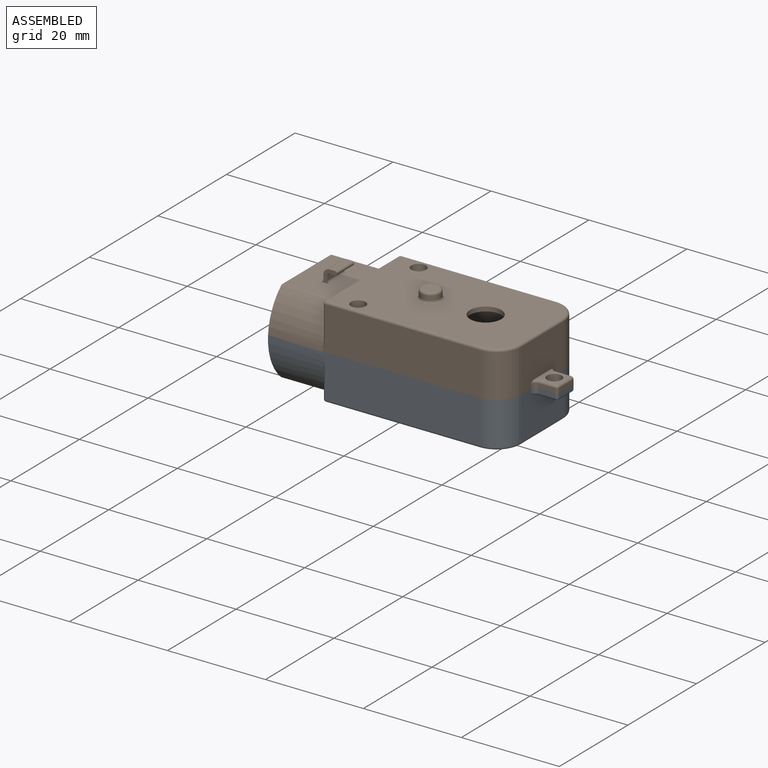
[diagram: assembled view]
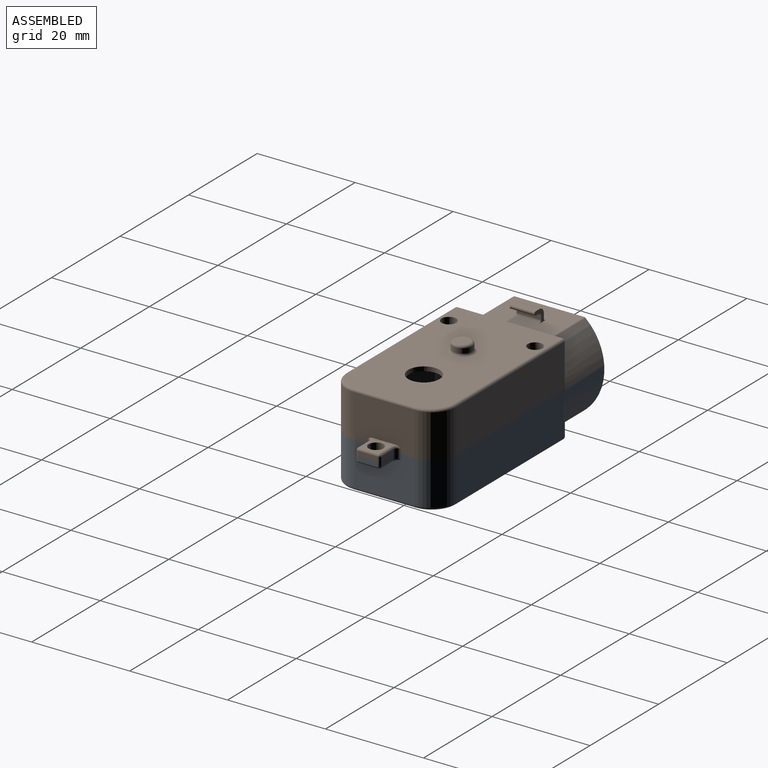
[diagram: assembled view, second angle]
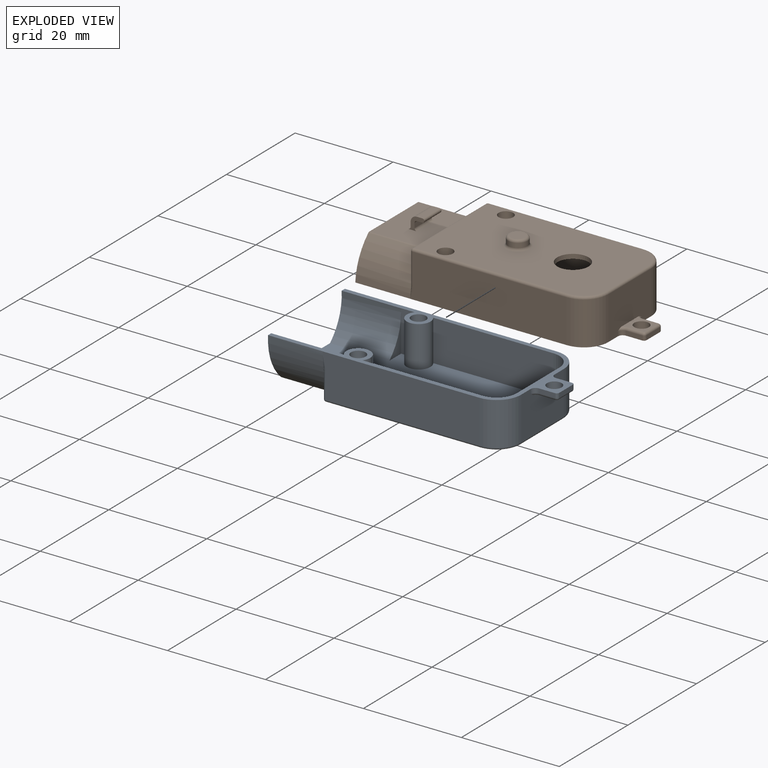
[diagram: exploded view]
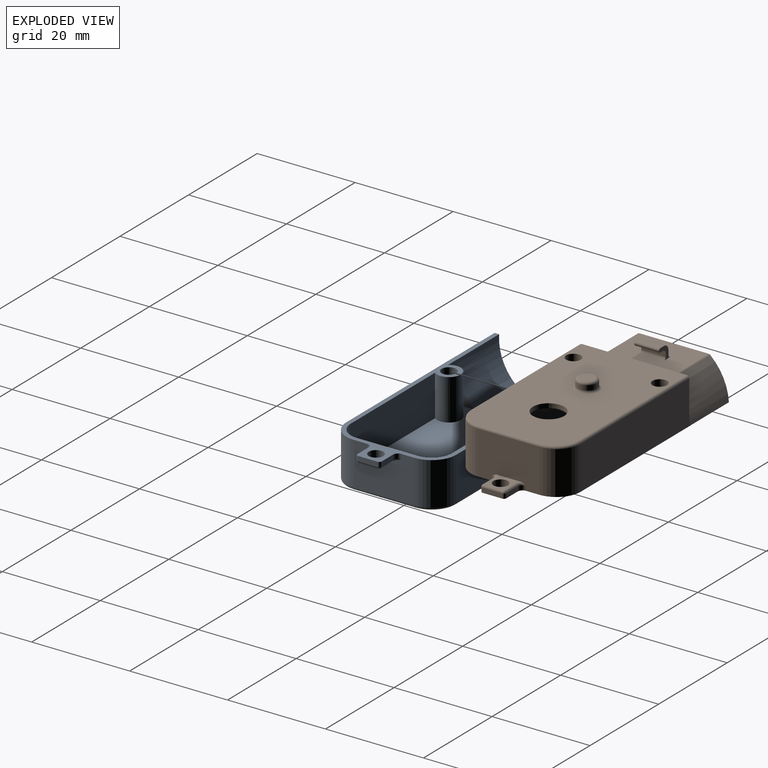
[diagram: exploded view, second angle]
ASSEMBLY  parts=2 mates=3
PART A: 74 faces, bbox 53.2x23.4x13.7 mm
  f0: plane 53.01x22.45mm, normal (0,0,1), area 139.2mm2, adj f39,f40,f41,f42,f43,f44,f45,f46
  f1: cylinder r=0.5mm len=5mm, axis (0,-1,0), area 3.9mm2, adj f2,f7,f11,f13
  f2: plane 5x0.9mm, normal (1,0,0), area 4.5mm2, adj f1,f10,f11,f13
  f3: plane 5x0.9mm, normal (-1,0,0), area 4.5mm2, adj f4,f11,f12,f13
  f4: cylinder r=1.3mm len=5mm, axis (0,1,0), area 10.2mm2, adj f3,f5,f11,f13
  f5: plane 5x1.1mm, normal (0,0,-1), area 5.5mm2, adj f4,f6,f11,f13
  f6: cylinder r=0.4mm len=5mm, axis (0,1,0), area 6.3mm2, adj f5,f7,f11,f13
  f7: plane 5x1.1mm, normal (0,0,1), area 5.5mm2, adj f1,f6,f11,f13
  f8: sphere r=0.5mm, area 0.4mm2, adj f16,f17,f23
  f9: sphere r=0.5mm, area 0.5mm2, adj f14,f15,f24
  f10: cylinder r=0.5mm len=5mm, axis (0,-1,0), area 3.9mm2, adj f2,f11,f13,f70
  f11: plane 3.3x2.7mm, normal (0,-1,0), area 3.5mm2, adj f1,f2,f3,f4,f5,f6,f7,f10
  f12: cylinder r=0.5mm len=5mm, axis (0,-1,0), area 3.9mm2, adj f3,f11,f13,f70
  f13: plane 3.3x2.7mm, normal (0,1,0), area 3.5mm2, adj f1,f2,f3,f4,f5,f6,f7,f10
  f14: cylinder r=0.5mm len=4.76mm, axis (0,0,1), area 3.7mm2, adj f9,f25,f26,f64
  f15: cylinder r=0.5mm len=31.5mm, axis (-1,0,0), area 24.7mm2, adj f9,f20,f64,f70
  f16: cylinder r=0.5mm len=31.5mm, axis (1,0,0), area 24.7mm2, adj f8,f19,f63,f70
  f17: cylinder r=0.5mm len=4.76mm, axis (0,0,-1), area 3.7mm2, adj f8,f21,f22,f63
  f18: cylinder r=0.5mm len=12.44mm, axis (0,1,0), area 9.8mm2, adj f19,f20,f53,f70
  f19: torus R=4.5mm, axis (0,0,1), area 5.9mm2, adj f16,f18,f44,f70
  f20: torus R=4.5mm, axis (0,0,1), area 5.9mm2, adj f15,f18,f52,f70
  f21: bspline ~3.44x0.54mm, area 0.8mm2, adj f17,f62,f63
  f22: plane 4.76x2.93mm, normal (-1,0,0), area 5.6mm2, adj f17,f23,f62
  f23: cylinder r=0.5mm len=3.66mm, axis (0,-1,0), area 2.6mm2, adj f8,f22,f27,f62,f70
  f24: cylinder r=0.5mm len=3.66mm, axis (0,-1,0), area 2.6mm2, adj f9,f25,f28,f61,f70
  f25: plane 4.76x2.93mm, normal (-1,0,0), area 5.6mm2, adj f14,f24,f61
  f26: bspline ~3.44x0.56mm, area 0.8mm2, adj f14,f61,f64
  f27: cylinder r=0.5mm len=11.7mm, axis (1,0,0), area 4.1mm2, adj f23,f59,f62,f70
  f28: cylinder r=0.5mm len=11.7mm, axis (1,0,0), area 4.1mm2, adj f24,f59,f61,f70
  f29: plane 7.65x3.4mm, normal (1,0,0), area 8mm2, adj f38,f57,f68
  f30: plane 7.65x3.4mm, normal (1,0,0), area 8mm2, adj f38,f55,f65
  f31: cylinder r=0.5mm len=3.3mm, axis (-1,0,0), area 2.6mm2, adj f34,f36,f51,f72
  f32: cylinder r=0.5mm len=3.3mm, axis (1,0,0), area 2.6mm2, adj f35,f37,f49,f72
  f33: cylinder r=0.5mm len=4mm, axis (0,1,0), area 3.1mm2, adj f36,f37,f47,f72
  f34: torus R=1.5mm, axis (0,0,1), area 1mm2, adj f31,f50,f53,f72
  f35: torus R=1.5mm, axis (0,0,1), area 1mm2, adj f32,f48,f53,f72
  f36: sphere r=0.5mm, area 0.2mm2, adj f31,f33,f46
  f37: sphere r=0.5mm, area 0.4mm2, adj f32,f33,f45
  f38: plane 47.28x20.6mm, normal (0,0,1), area 852.4mm2, adj f29,f30,f39,f40,f41,f42,f43,f55
  f39: cylinder r=4.08mm len=8.38mm, axis (0,0,1), area 53.7mm2, adj f0,f38,f41,f67
  f40: cylinder r=4.08mm len=8.38mm, axis (0,0,-1), area 53.7mm2, adj f0,f38,f41,f43
  f41: plane 12.44x8.38mm, normal (-1,0,0), area 104.2mm2, adj f0,f38,f39,f40
  f42: cylinder r=2.42mm len=8.38mm, axis (0,0,1), area 90.8mm2, adj f0,f38,f43,f65
  f43: plane 24.55x8.38mm, normal (0,-1,0), area 205.7mm2, adj f0,f38,f40,f42
  f44: cylinder r=5mm len=8.8mm, axis (0,0,1), area 69.1mm2, adj f0,f19,f53,f63
  f45: cylinder r=0.5mm len=0.9mm, axis (0,0,1), area 0.7mm2, adj f0,f37,f47,f49
  f46: cylinder r=0.5mm len=0.9mm, axis (0,0,-1), area 0.7mm2, adj f0,f36,f47,f51
  f47: plane 4x0.9mm, normal (1,0,0), area 3.6mm2, adj f0,f33,f45,f46
  f48: cylinder r=1mm len=1mm, axis (0,0,-1), area 1.4mm2, adj f0,f35,f49,f53
  f49: plane 3.3x0.9mm, normal (0,-1,0), area 3mm2, adj f0,f32,f45,f48
  f50: cylinder r=1mm len=1mm, axis (0,0,1), area 1.4mm2, adj f0,f34,f51,f53
  f51: plane 3.3x0.9mm, normal (0,1,0), area 3mm2, adj f0,f31,f46,f50
  f52: cylinder r=5mm len=8.8mm, axis (0,0,-1), area 69.1mm2, adj f0,f20,f53,f64
  f53: plane 12.59x8.95mm, normal (1,0,0), area 100.1mm2, adj f0,f18,f34,f35,f44,f48,f50,f52
  f54: bspline ~1.17x0.24mm, area 0mm2, adj f0,f62,f63
  f55: cylinder r=10.3mm len=12.12mm, axis (1,0,0), area 113.4mm2, adj f0,f30,f38,f56,f59
  f56: plane 0.73x0.03mm, normal (1,0,0), area 0mm2, adj f0,f55,f65
  f57: cylinder r=10.3mm len=12.12mm, axis (1,0,0), area 113.4mm2, adj f0,f29,f38,f58,f59
  f58: plane 0.73x0.03mm, normal (1,0,0), area 0mm2, adj f0,f57,f68
  f59: plane 22.44x9.3mm, normal (-1,0,0), area 31.2mm2, adj f0,f27,f28,f38,f55,f57,f61,f62
  f60: bspline ~2.3x0.43mm, area 0mm2, adj f0,f61,f64
  f61: cylinder r=11.22mm len=11.37mm, axis (1,0,0), area 115.3mm2, adj f0,f24,f25,f26,f28,f59,f60
  f62: cylinder r=11.22mm len=11.37mm, axis (1,0,0), area 115.3mm2, adj f0,f21,f22,f23,f27,f54,f59
  f63: plane 32.09x8.89mm, normal (0,-1,0), area 278.1mm2, adj f0,f16,f17,f21,f44,f54
  f64: plane 32.14x8.94mm, normal (0,1,0), area 278.1mm2, adj f0,f14,f15,f26,f52,f60
  f65: plane 8.38x2.73mm, normal (0,-1,0), area 22.9mm2, adj f0,f30,f38,f42,f56
  f66: cylinder r=2.42mm len=8.38mm, axis (0,0,1), area 90.8mm2, adj f0,f38,f67,f68
  f67: plane 24.55x8.38mm, normal (0,1,0), area 205.7mm2, adj f0,f38,f39,f66
  f68: plane 8.38x2.73mm, normal (0,1,0), area 22.9mm2, adj f0,f29,f38,f58,f66
  f69: cylinder r=1.5mm len=9.3mm, axis (0,0,1), area 87.7mm2, adj f0,f70
  f70: plane 47.7x21.44mm, normal (0,0,-1), area 905.1mm2, adj f10,f11,f12,f13,f15,f16,f18,f19
  f71: cylinder r=1.5mm len=9.3mm, axis (0,0,1), area 87.7mm2, adj f0,f70
  f72: plane 4.76x4.3mm, normal (0,0,-1), area 10.4mm2, adj f31,f32,f33,f34,f35,f53,f73
  f73: cylinder r=1.5mm len=3mm, axis (0,0,1), area 13.2mm2, adj f0,f72
PART B: 74 faces, bbox 53.2x23.4x12.1 mm
  f0: plane 8.38x2.73mm, normal (0,1,0), area 22.9mm2, adj f14,f17,f72,f73
  f1: plane 24.55x8.38mm, normal (0,1,0), area 205.7mm2, adj f17,f18,f72,f73
  f2: plane 8.38x2.73mm, normal (0,-1,0), area 22.9mm2, adj f14,f17,f71,f73
  f3: plane 14.11x11.2mm, normal (0,0,1), area 149.1mm2, adj f4,f13,f36,f37,f41,f42,f54,f55
  f4: plane 21.44x6.22mm, normal (-1,0,0), area 35.1mm2, adj f3,f11,f12,f54,f55,f57,f60,f61
  f5: plane 31.85x8.81mm, normal (0,1,0), area 277.5mm2, adj f10,f56,f57,f62,f73
  f6: plane 31.85x8.8mm, normal (0,-1,0), area 277.5mm2, adj f9,f58,f60,f65,f73
  f7: plane 12.59x8.95mm, normal (1,0,0), area 100.1mm2, adj f9,f10,f26,f27,f28,f43,f49,f66
  f8: plane 36x21.44mm, normal (0,0,1), area 697.2mm2, adj f52,f61,f62,f64,f65,f66,f67,f68
  f9: cylinder r=5mm len=8.8mm, axis (0,0,1), area 69.1mm2, adj f6,f7,f67,f73
  f10: cylinder r=5mm len=8.8mm, axis (0,0,-1), area 69.1mm2, adj f5,f7,f64,f73
  f11: cylinder r=11.22mm len=11.2mm, axis (1,0,0), area 98.9mm2, adj f4,f13,f54,f58,f73
  f12: cylinder r=11.22mm len=11.2mm, axis (1,0,0), area 98.9mm2, adj f4,f13,f55,f56,f73
  f13: plane 22.39x7.84mm, normal (-1,0,0), area 28.6mm2, adj f3,f11,f12,f20,f21,f22,f54,f55
  f14: plane 20.6x8.38mm, normal (1,0,0), area 46.1mm2, adj f0,f2,f17,f20,f21,f22,f73
  f15: plane 24.55x8.38mm, normal (0,-1,0), area 205.7mm2, adj f17,f19,f71,f73
  f16: plane 12.44x8.38mm, normal (-1,0,0), area 104.2mm2, adj f17,f18,f19,f73
  f17: plane 35.16x20.6mm, normal (0,0,-1), area 653.1mm2, adj f0,f1,f2,f14,f15,f16,f18,f19
  f18: cylinder r=4.08mm len=8.38mm, axis (0,0,1), area 53.7mm2, adj f1,f16,f17,f73
  f19: cylinder r=4.08mm len=8.38mm, axis (0,0,-1), area 53.7mm2, adj f15,f16,f17,f73
  f20: cylinder r=10.3mm len=12.12mm, axis (1,0,0), area 95.6mm2, adj f13,f14,f21,f73
  f21: plane 13.79x12.12mm, normal (0,0,-1), area 167.2mm2, adj f13,f14,f20,f22
  f22: cylinder r=10.3mm len=12.12mm, axis (1,0,0), area 95.6mm2, adj f13,f14,f21,f73
  f23: plane 3.3x0.9mm, normal (0,1,0), area 3mm2, adj f27,f44,f45,f73
  f24: plane 3.3x0.9mm, normal (0,-1,0), area 3mm2, adj f28,f48,f51,f73
  f25: plane 4x0.9mm, normal (1,0,0), area 3.6mm2, adj f45,f47,f48,f73
  f26: plane 4.76x4.3mm, normal (0,0,1), area 10.4mm2, adj f7,f29,f43,f44,f47,f49,f51
  f27: cylinder r=1mm len=1mm, axis (0,0,1), area 1.4mm2, adj f7,f23,f43,f73
  f28: cylinder r=1mm len=1mm, axis (0,0,-1), area 1.4mm2, adj f7,f24,f49,f73
  f29: cylinder r=1.5mm len=3mm, axis (0,0,1), area 13.2mm2, adj f26,f73
  f30: cylinder r=2mm len=4mm, axis (0,0,-1), area 11.6mm2, adj f52,f53
  f31: plane 3x3mm, normal (0,0,1), area 7.1mm2, adj f53
  f32: plane 5x0.9mm, normal (-1,0,0), area 4.5mm2, adj f36,f37,f39,f41
  f33: plane 5x0.9mm, normal (1,0,0), area 4.5mm2, adj f36,f37,f38,f42
  f34: plane 5x1.1mm, normal (0,0,-1), area 5.5mm2, adj f36,f37,f38,f40
  f35: plane 5x1.1mm, normal (0,0,1), area 5.5mm2, adj f36,f37,f39,f40
  f36: plane 3.3x2.7mm, normal (0,-1,0), area 3.5mm2, adj f3,f32,f33,f34,f35,f38,f39,f40
  f37: plane 3.3x2.7mm, normal (0,1,0), area 3.5mm2, adj f3,f32,f33,f34,f35,f38,f39,f40
  f38: cylinder r=0.5mm len=5mm, axis (0,-1,0), area 3.9mm2, adj f33,f34,f36,f37
  f39: cylinder r=1.3mm len=5mm, axis (0,1,0), area 10.2mm2, adj f32,f35,f36,f37
  f40: cylinder r=0.4mm len=5mm, axis (0,1,0), area 6.3mm2, adj f34,f35,f36,f37
  f41: cylinder r=0.5mm len=5mm, axis (0,-1,0), area 3.9mm2, adj f3,f32,f36,f37
  f42: cylinder r=0.5mm len=5mm, axis (0,-1,0), area 3.9mm2, adj f3,f33,f36,f37
  f43: torus R=1.5mm, axis (0,0,1), area 1mm2, adj f7,f26,f27,f44
  f44: cylinder r=0.5mm len=3.3mm, axis (1,0,0), area 2.6mm2, adj f23,f26,f43,f46
  f45: cylinder r=0.5mm len=0.9mm, axis (0,0,-1), area 0.7mm2, adj f23,f25,f46,f73
  f46: sphere r=0.5mm, area 0.2mm2, adj f44,f45,f47
  f47: cylinder r=0.5mm len=4mm, axis (0,-1,0), area 3.1mm2, adj f25,f26,f46,f50
  f48: cylinder r=0.5mm len=0.9mm, axis (0,0,1), area 0.7mm2, adj f24,f25,f50,f73
  f49: torus R=1.5mm, axis (0,0,1), area 1mm2, adj f7,f26,f28,f51
  f50: sphere r=0.5mm, area 0.4mm2, adj f47,f48,f51
  f51: cylinder r=0.5mm len=3.3mm, axis (-1,0,0), area 2.6mm2, adj f24,f26,f49,f50
  f52: torus R=2.5mm, axis (0,0,1), area 10.8mm2, adj f8,f30
  f53: torus R=1.5mm, axis (0,0,1), area 9mm2, adj f30,f31
  f54: cylinder r=0.5mm len=11.2mm, axis (1,0,0), area 4mm2, adj f3,f4,f11,f13
  f55: cylinder r=0.5mm len=11.2mm, axis (1,0,0), area 4mm2, adj f3,f4,f12,f13
  f56: bspline ~3.43x0.56mm, area 1.2mm2, adj f5,f12,f57,f73
  f57: cylinder r=0.5mm len=6.22mm, axis (0,0,1), area 4.9mm2, adj f4,f5,f56,f59
  f58: bspline ~2.61x0.5mm, area 1.2mm2, adj f6,f11,f60,f73
  f59: sphere r=0.5mm, area 0.5mm2, adj f57,f61,f62
  f60: cylinder r=0.5mm len=6.22mm, axis (0,0,-1), area 4.9mm2, adj f4,f6,f58,f63
  f61: cylinder r=0.5mm len=21.44mm, axis (0,1,0), area 16.8mm2, adj f4,f8,f59,f63
  f62: cylinder r=0.5mm len=31.5mm, axis (1,0,0), area 24.7mm2, adj f5,f8,f59,f64
  f63: sphere r=0.5mm, area 0.4mm2, adj f60,f61,f65
  f64: torus R=4.5mm, axis (0,0,1), area 5.9mm2, adj f8,f10,f62,f66
  f65: cylinder r=0.5mm len=31.5mm, axis (-1,0,0), area 24.7mm2, adj f6,f8,f63,f67
  f66: cylinder r=0.5mm len=12.44mm, axis (0,-1,0), area 9.8mm2, adj f7,f8,f64,f67
  f67: torus R=4.5mm, axis (0,0,1), area 5.9mm2, adj f8,f9,f65,f66
  f68: cylinder r=3.2mm len=6.4mm, axis (0,0,1), area 18.5mm2, adj f8,f17
  f69: cylinder r=1.5mm len=9.3mm, axis (0,0,1), area 87.7mm2, adj f8,f73
  f70: cylinder r=1.5mm len=9.3mm, axis (0,0,1), area 87.7mm2, adj f8,f73
  f71: cylinder r=2.42mm len=8.38mm, axis (0,0,1), area 90.8mm2, adj f2,f15,f17,f73
  f72: cylinder r=2.42mm len=8.38mm, axis (0,0,1), area 90.8mm2, adj f0,f1,f17,f73
  f73: plane 53.01x22.45mm, normal (0,0,-1), area 139.2mm2, adj f0,f1,f2,f5,f6,f7,f9,f10
PLACE A t=(7.79,0.37,2.58)mm fixed
PLACE B t=(7.79,0.37,2.58)mm
MATE planar B.f6 <-> A.f63  axis (0,-1,0) through (5.52,-10.85,6.97)mm
MATE planar B.f13 <-> A.f59  axis (-1,0,0) through (-21.91,0.37,8.08)mm
MATE planar B.f73 <-> A.f0  axis (0,0,-1) through (-21.91,-10.83,2.58)mm
